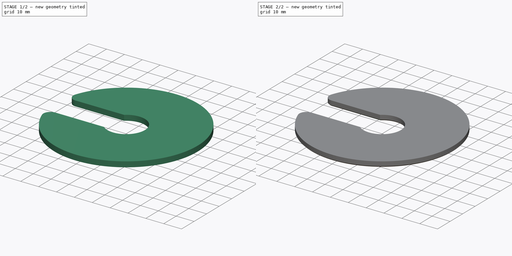
[diagram: build sequence overview — one tinted view per stage of 2, left to right]
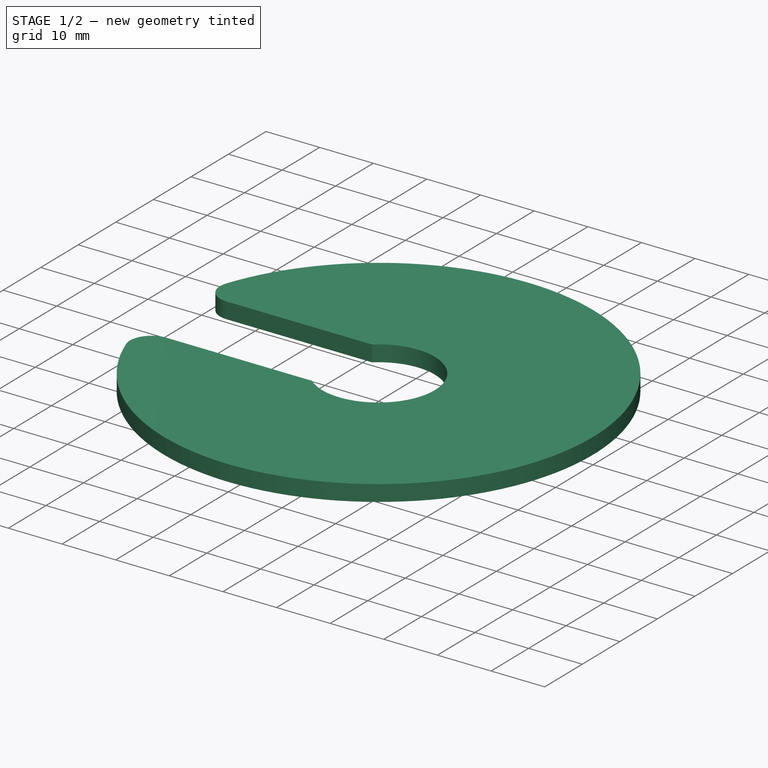
[diagram: stage 1 of 2 — iso view after this stage's code; geometry added in this stage tinted green]
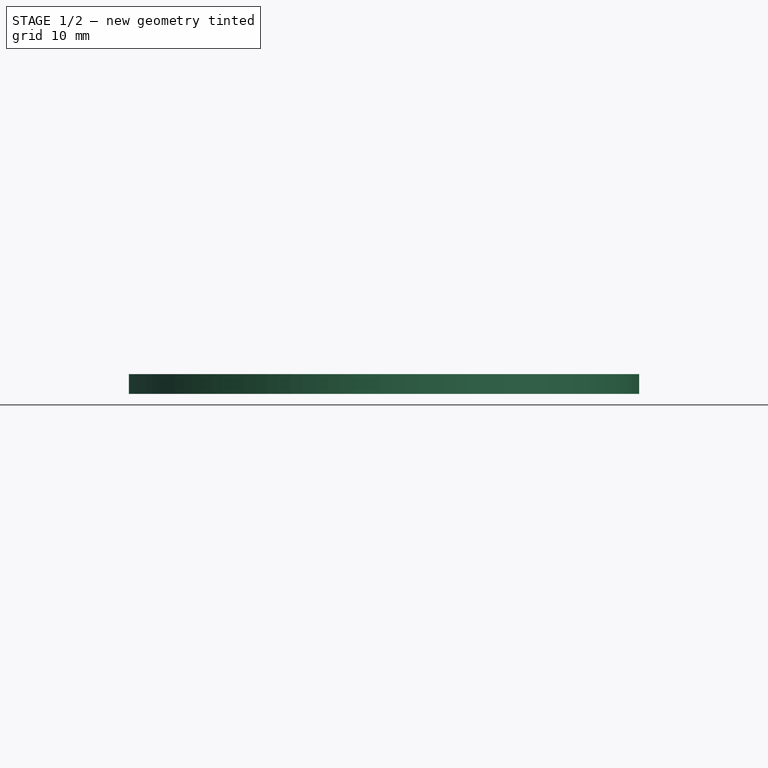
[diagram: stage 1 of 2 — front view after this stage's code; geometry added in this stage tinted green]
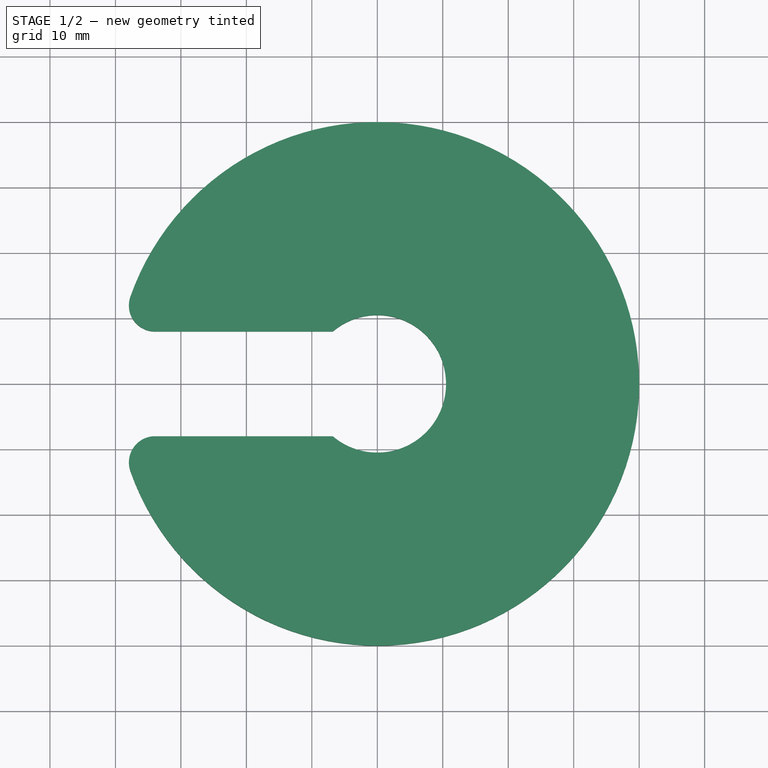
[diagram: stage 1 of 2 — top view after this stage's code; geometry added in this stage tinted green]
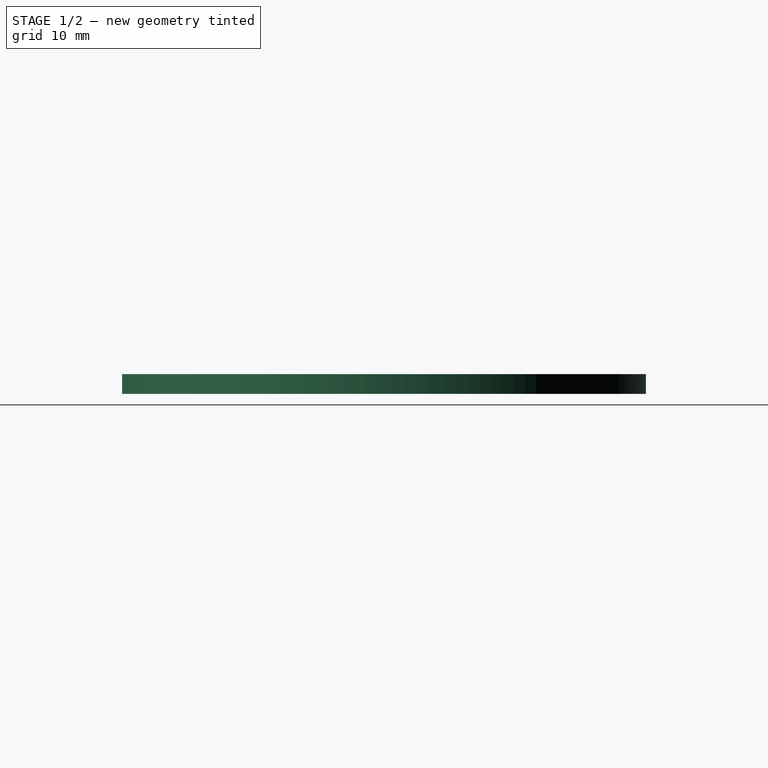
[diagram: stage 1 of 2 — right view after this stage's code; geometry added in this stage tinted green]
FCSTD DOCUMENT  (FreeCAD 0.22R36958 (Git))
Label: cpap hose retainer clip
License: All rights reserved
LicenseURL: http://en.wikipedia.org/wiki/All_rights_reserved
objects: Sketcher::SketchObject×1, PartDesign::Pad×1, PartDesign::Chamfer×1, PartDesign::Body×1
note: 6 computed .brp shape members not serialized (recipe doc carries the construction recipe); baked Part::Feature solids carry a one-line shape summary decoded from their .brp

FEATURE [Sketcher::SketchObject] Sketch
  AttachmentSupport = -> [XY_Plane]
  FullyConstrained = true
  MapMode = 5
  sketch-geometry (8):
    g0: ArcOfCircle CenterX=0 CenterY=0 CenterZ=0 NormalX=0 NormalY=0 NormalZ=1 AngleXU=0 Radius=40 StartAngle=3.48143 EndAngle=9.08494
    g1: ArcOfCircle CenterX=0 CenterY=0 CenterZ=0 NormalX=0 NormalY=0 NormalZ=1 AngleXU=0 Radius=10.5 StartAngle=4.00784 EndAngle=8.55853
    g2: LineSegment StartX=-33.9411 StartY=8 StartZ=0 EndX=-6.80074 EndY=8 EndZ=0
    g3: LineSegment StartX=-33.9411 StartY=-8 StartZ=0 EndX=-6.80074 EndY=-8 EndZ=0
    g4: GeomPoint X=-20 Y=-8 Z=0
    g5: GeomPoint X=-20 Y=8 Z=0
    g6: ArcOfCircle CenterX=-33.9411 CenterY=12 CenterZ=0 NormalX=0 NormalY=0 NormalZ=1 AngleXU=0 Radius=4 StartAngle=2.80176 EndAngle=4.71239
    g7: ArcOfCircle CenterX=-33.9411 CenterY=-12 CenterZ=0 NormalX=0 NormalY=0 NormalZ=1 AngleXU=0 Radius=4 StartAngle=1.5708 EndAngle=3.48143
  constraints (19):
    c: Coincident(g1,g0)
    c: Diameter(g1) = 21
    c: Diameter(g0) = 80
    c: Horizontal(g2)
    c: Horizontal(g3)
    c: PointOnObject(g4,g3)
    c: PointOnObject(g5,g2)
    c: DistanceY(g4,g5) = 16
    c: Symmetric(g5,g4,g-1)
    c: Coincident(g1,g2)
    c: Coincident(g1,g3)
    c: Tangent(g0,g6) = -1.5708
    c: Tangent(g2,g6) = -1.5708
    c: Tangent(g3,g7) = 1.5708
    c: Tangent(g0,g7) = -1.5708
    c: Equal(g6,g7)
    c: Radius(g7) = 4
    c: Coincident(g0,g-1)
    c: DistanceX(g5,g0) = 20
FEATURE [PartDesign::Pad] Pad
  Direction = (0,0,1)
  Length = 3
  Length2 = 10
  Profile = -> Sketch
  ReferenceAxis = -> Sketch [N_Axis]
  Suppressed = false
  Type = 0
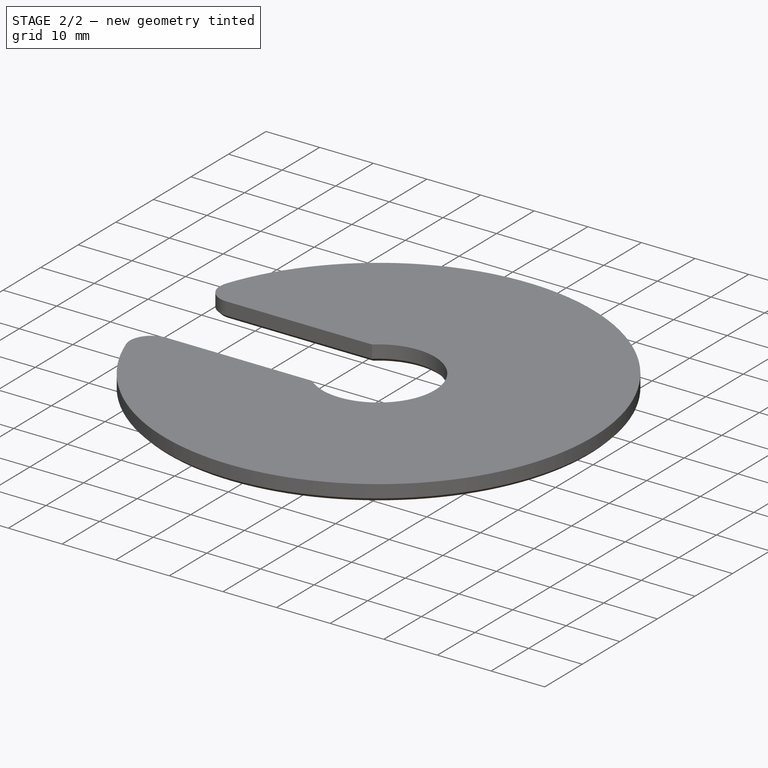
[diagram: stage 2 of 2 — iso view after this stage's code; geometry added in this stage tinted green]
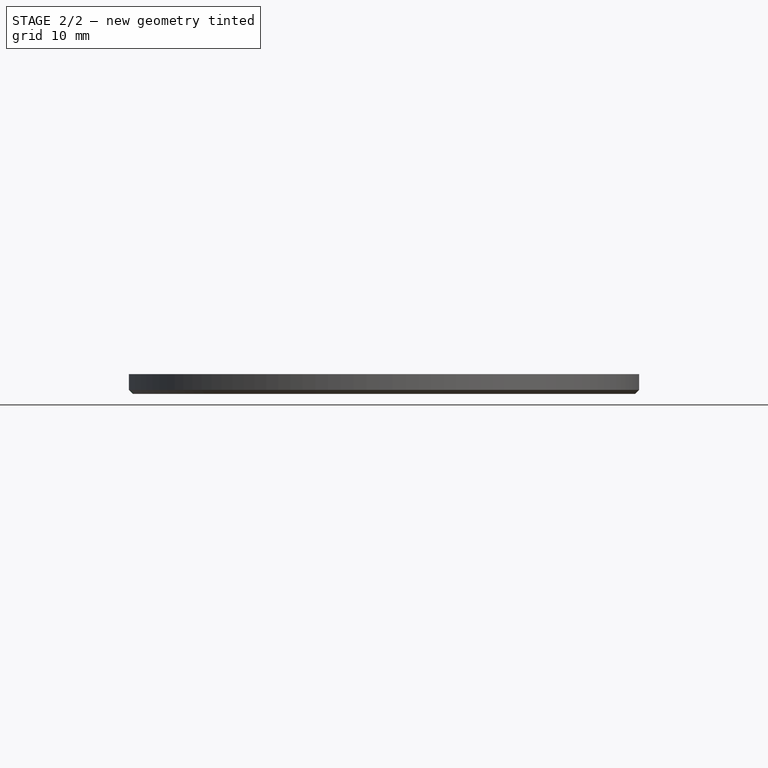
[diagram: stage 2 of 2 — front view after this stage's code; geometry added in this stage tinted green]
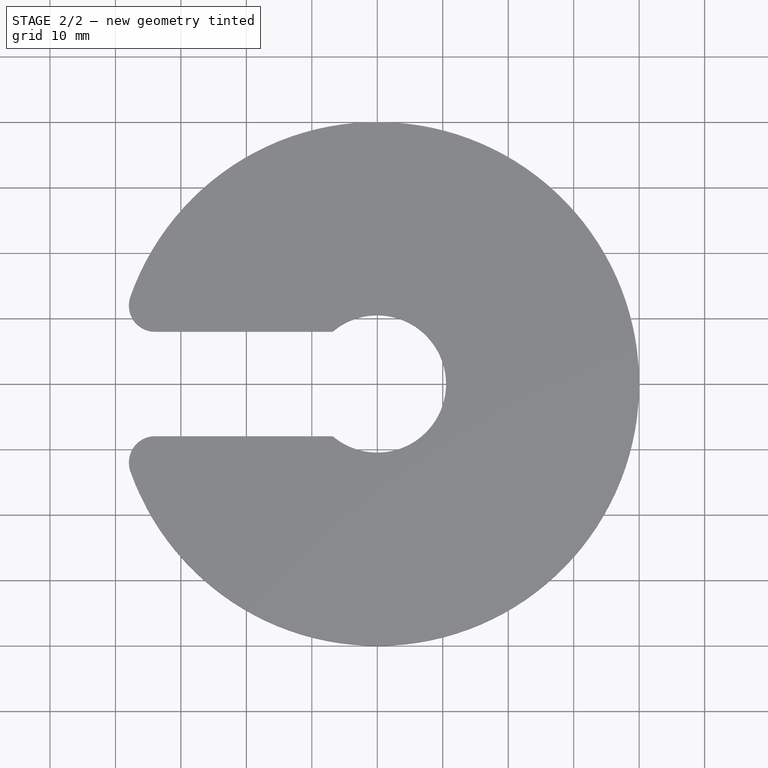
[diagram: stage 2 of 2 — top view after this stage's code; geometry added in this stage tinted green]
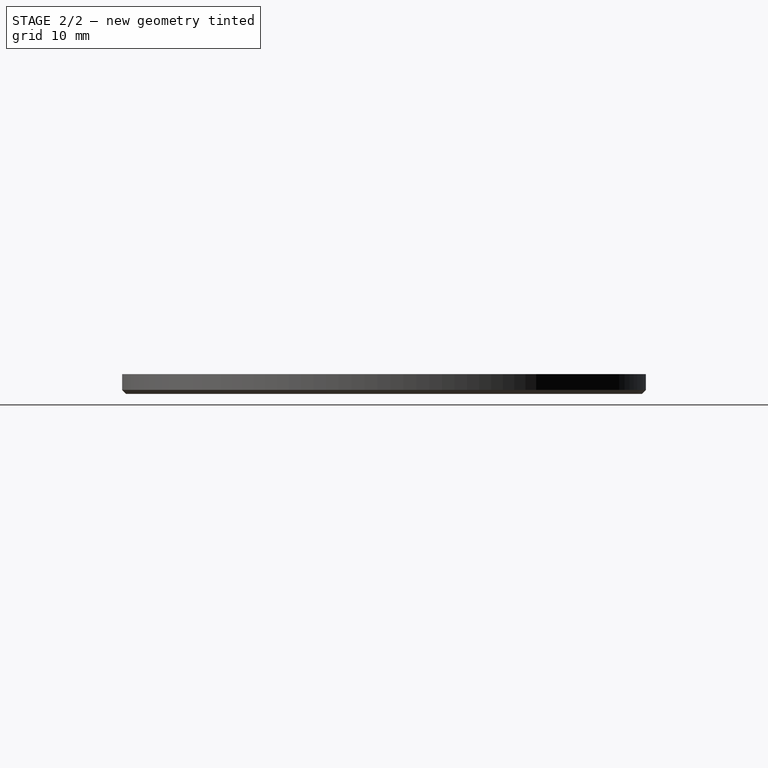
[diagram: stage 2 of 2 — right view after this stage's code; geometry added in this stage tinted green]
FEATURE [PartDesign::Chamfer] Chamfer
  Angle = 45
  Base = -> Pad [Face7]
  BaseFeature = -> Pad
  ChamferType = 0
  FlipDirection = false
  Size = 0.6
  Size2 = 1
  SupportTransform = false
  Suppressed = false
  UseAllEdges = false
FEATURE [PartDesign::Body] Body  label="clip"
  Group = -> [Sketch,Pad,Chamfer]
  Origin = -> Origin
  Tip = -> Chamfer
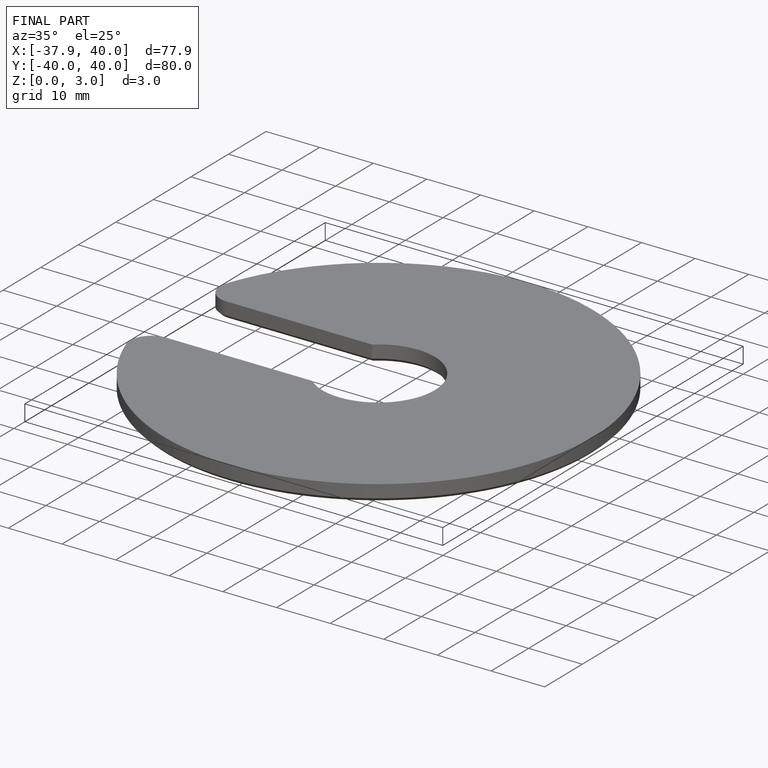
[diagram: finished part — iso view with bounding-box wireframe]
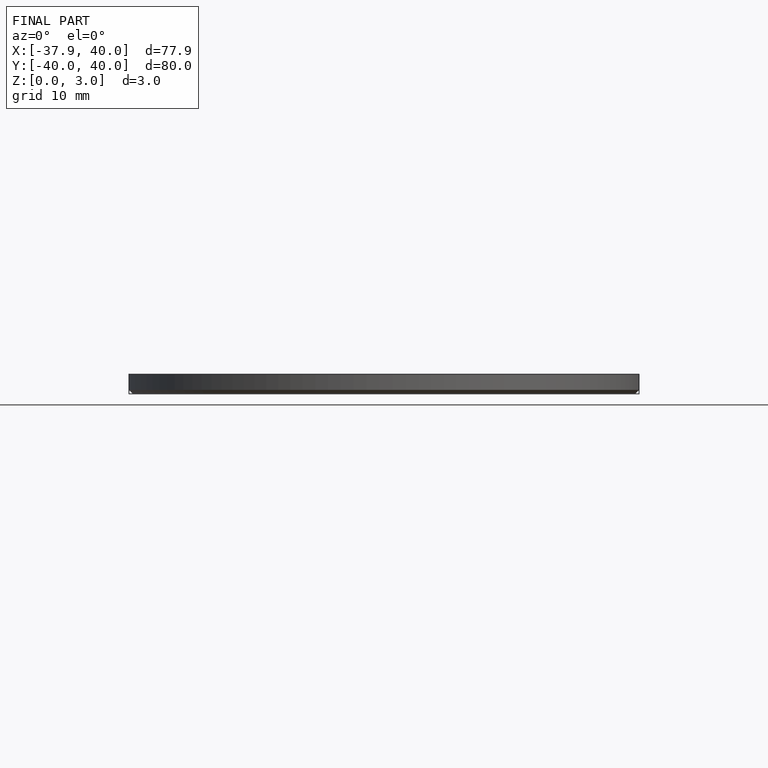
[diagram: finished part — front view with bounding-box wireframe]
